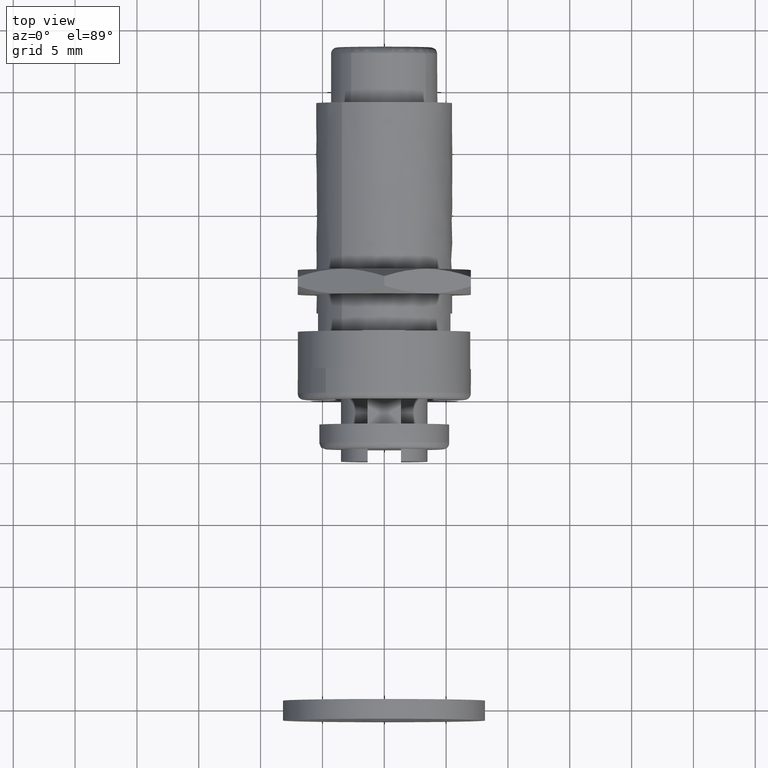
[diagram: clean part render]
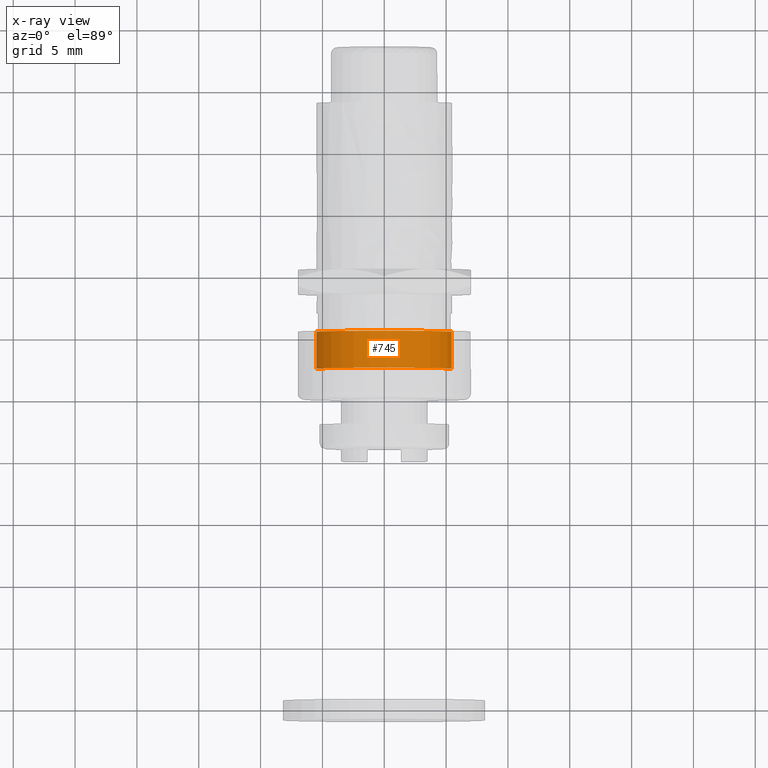
[diagram: x-ray — body ghosted, one internal face saturated and labeled with its STEP entity id]
A machine part, top view, then the same camera in x-ray: the body is ghosted and one INTERNAL B-rep face — a face not visible from any outside direction — is saturated and labeled: STEP entity #745.
In plain terms, the highlighted face is a freeform B-spline surface patch.
Its self-contained STEP definition (entity closure, byte-faithful):
#643=CARTESIAN_POINT('',(5.461552395000165,5.575000000000002,-0.649188290612172));
#644=CARTESIAN_POINT('',(5.480131884967332,5.575000000000001,-0.492881007508877));
#645=CARTESIAN_POINT('',(5.489741391320267,5.575000000000001,-0.335766967441713));
#646=CARTESIAN_POINT('',(5.825508358761980,5.575000000000002,5.153974423878553));
#647=CARTESIAN_POINT('',(0.335766967441713,5.575000000000001,5.489741391320267));
#648=CARTESIAN_POINT('',(-5.153974423878553,5.575000000000002,5.825508358761980));
#649=CARTESIAN_POINT('',(-5.489741391320267,5.575000000000001,0.335766967441713));
#650=CARTESIAN_POINT('',(5.461552395000165,2.423125000000000,-0.649188290612172));
#651=CARTESIAN_POINT('',(5.480131884967332,2.423124999999999,-0.492881007508877));
#652=CARTESIAN_POINT('',(5.489741391320267,2.423124999999999,-0.335766967441713));
#653=CARTESIAN_POINT('',(5.825508358761980,2.423125000000000,5.153974423878553));
#654=CARTESIAN_POINT('',(0.335766967441713,2.423124999999999,5.489741391320267));
#655=CARTESIAN_POINT('',(-5.153974423878553,2.423125000000000,5.825508358761980));
#656=CARTESIAN_POINT('',(-5.489741391320267,2.423124999999999,0.335766967441713));
#664=(BOUNDED_SURFACE()B_SPLINE_SURFACE(2,1,((#643,#650),(#644,#651),(#645,#652),(#646,#653),(#647,#654),(#648,#655),(#649,#656)),.UNSPECIFIED.,.F.,.F.,.U.)B_SPLINE_SURFACE_WITH_KNOTS((3,2,2,3),(2,2),(0.0,0.364507934888324,9.477206307096417,18.589904679304510),(0.0,3.151875000000003),.UNSPECIFIED.)GEOMETRIC_REPRESENTATION_ITEM()RATIONAL_B_SPLINE_SURFACE(((0.977505800795127,0.977505800795127),(0.988284271247462,0.988284271247462),(1.0,1.0),(0.707106781186548,0.707106781186548),(1.0,1.0),(0.707106781186548,0.707106781186548),(1.0,1.0)))REPRESENTATION_ITEM('')SURFACE());
#665=CARTESIAN_POINT('',(5.461552394993721,2.500000000000000,-0.649188290666390));
#666=VERTEX_POINT('',#665);
#667=CARTESIAN_POINT('',(0.0,2.500000000000000,5.500000000000000));
#668=VERTEX_POINT('',#667);
#669=CARTESIAN_POINT('',(5.461552394993721,2.500000000000000,-0.649188290666390));
#670=CARTESIAN_POINT('',(5.500000000000001,2.500000000000001,-0.325732658140297));
#671=CARTESIAN_POINT('',(5.500000000000000,2.500000000000000,1.384662E-018));
#672=CARTESIAN_POINT('',(5.500000000000001,2.500000000000000,5.500000000000001));
#673=CARTESIAN_POINT('',(0.0,2.500000000000000,5.500000000000000));
#681=(BOUNDED_CURVE()B_SPLINE_CURVE(2,(#669,#670,#671,#672,#673),.UNSPECIFIED.,.F.,.U.)B_SPLINE_CURVE_WITH_KNOTS((3,2,3),(0.229562473512289,0.250000000000000,0.500000000000000),.UNSPECIFIED.)CURVE()GEOMETRIC_REPRESENTATION_ITEM()RATIONAL_B_SPLINE_CURVE((0.956026754181309,0.976055948329716,1.0,0.707106781186548,1.0))REPRESENTATION_ITEM(''));
#682=EDGE_CURVE('',#666,#668,#681,.T.);
#683=ORIENTED_EDGE('',*,*,#682,.T.);
#684=CARTESIAN_POINT('',(-5.489741564786965,2.500000000000038,0.335764131262238));
#685=VERTEX_POINT('',#684);
#686=CARTESIAN_POINT('',(0.0,2.500000000000000,5.500000000000000));
#687=CARTESIAN_POINT('',(-5.173886045973801,2.500000000000000,5.500000000000001));
#688=CARTESIAN_POINT('',(-5.489741564786966,2.500000000000038,0.335764131262238));
#696=(BOUNDED_CURVE()B_SPLINE_CURVE(2,(#686,#687,#688),.UNSPECIFIED.,.F.,.U.)B_SPLINE_CURVE_WITH_KNOTS((3,3),(0.500000000000000,0.739333051385274),.UNSPECIFIED.)CURVE()GEOMETRIC_REPRESENTATION_ITEM()RATIONAL_B_SPLINE_CURVE((1.0,0.719603888845286,0.976072232724350))REPRESENTATION_ITEM(''));
#697=EDGE_CURVE('',#668,#685,#696,.T.);
#698=ORIENTED_EDGE('',*,*,#697,.T.);
#699=CARTESIAN_POINT('',(-5.489741562651256,5.500000000000000,0.335764166181366));
#700=VERTEX_POINT('',#699);
#701=CARTESIAN_POINT('',(-5.489741562651256,5.500000000000000,0.335764166181366));
#702=CARTESIAN_POINT('',(-5.489741564786965,2.500000000000038,0.335764131262238));
#703=QUASI_UNIFORM_CURVE('',1,(#701,#702),.UNSPECIFIED.,.F.,.U.);
#704=EDGE_CURVE('',#700,#685,#703,.T.);
#705=ORIENTED_EDGE('',*,*,#704,.F.);
#706=CARTESIAN_POINT('',(0.0,5.500000000000000,5.500000000000000));
#707=VERTEX_POINT('',#706);
#708=CARTESIAN_POINT('',(0.0,5.500000000000000,5.500000000000000));
#709=CARTESIAN_POINT('',(-5.173886013002268,5.500000000000000,5.500000000000000));
#710=CARTESIAN_POINT('',(-5.489741562651256,5.500000000000000,0.335764166181366));
#718=(BOUNDED_CURVE()B_SPLINE_CURVE(2,(#708,#709,#710),.UNSPECIFIED.,.F.,.U.)B_SPLINE_CURVE_WITH_KNOTS((3,3),(0.500000000000000,0.739333050287739),.UNSPECIFIED.)CURVE()GEOMETRIC_REPRESENTATION_ITEM()RATIONAL_B_SPLINE_CURVE((1.0,0.719603890131129,0.976072230372121))REPRESENTATION_ITEM(''));
#719=EDGE_CURVE('',#707,#700,#718,.T.);
#720=ORIENTED_EDGE('',*,*,#719,.F.);
#721=CARTESIAN_POINT('',(5.461552394993721,5.500000000000000,-0.649188290666390));
#722=VERTEX_POINT('',#721);
#723=CARTESIAN_POINT('',(5.461552394993721,5.500000000000000,-0.649188290666390));
#724=CARTESIAN_POINT('',(5.500000000000001,5.500000000000001,-0.325732658140297));
#725=CARTESIAN_POINT('',(5.500000000000000,5.500000000000000,1.384662E-018));
#726=CARTESIAN_POINT('',(5.500000000000001,5.500000000000001,5.500000000000001));
#727=CARTESIAN_POINT('',(0.0,5.500000000000000,5.500000000000000));
#735=(BOUNDED_CURVE()B_SPLINE_CURVE(2,(#723,#724,#725,#726,#727),.UNSPECIFIED.,.F.,.U.)B_SPLINE_CURVE_WITH_KNOTS((3,2,3),(0.229562473512289,0.250000000000000,0.500000000000000),.UNSPECIFIED.)CURVE()GEOMETRIC_REPRESENTATION_ITEM()RATIONAL_B_SPLINE_CURVE((0.956026754181309,0.976055948329716,1.0,0.707106781186548,1.0))REPRESENTATION_ITEM(''));
#736=EDGE_CURVE('',#722,#707,#735,.T.);
#737=ORIENTED_EDGE('',*,*,#736,.F.);
#738=CARTESIAN_POINT('',(5.461552394993721,5.500000000000000,-0.649188290666390));
#739=CARTESIAN_POINT('',(5.461552394993721,2.500000000000000,-0.649188290666390));
#740=QUASI_UNIFORM_CURVE('',1,(#738,#739),.UNSPECIFIED.,.F.,.U.);
#741=EDGE_CURVE('',#722,#666,#740,.T.);
#742=ORIENTED_EDGE('',*,*,#741,.T.);
#743=EDGE_LOOP('',(#683,#698,#705,#720,#737,#742));
#744=FACE_OUTER_BOUND('',#743,.T.);
#745=ADVANCED_FACE('',(#744),#664,.F.);